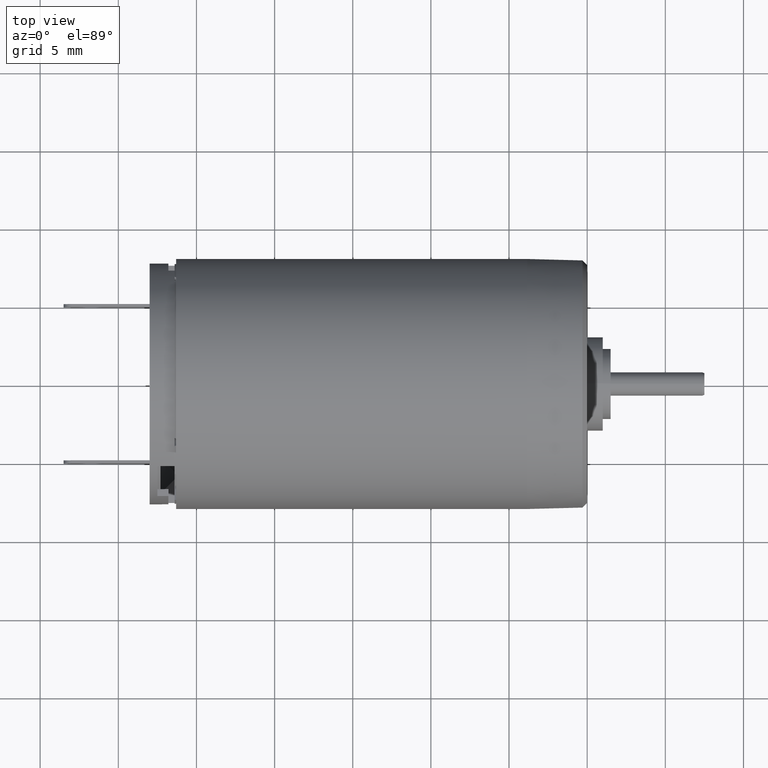
[diagram: clean part render]
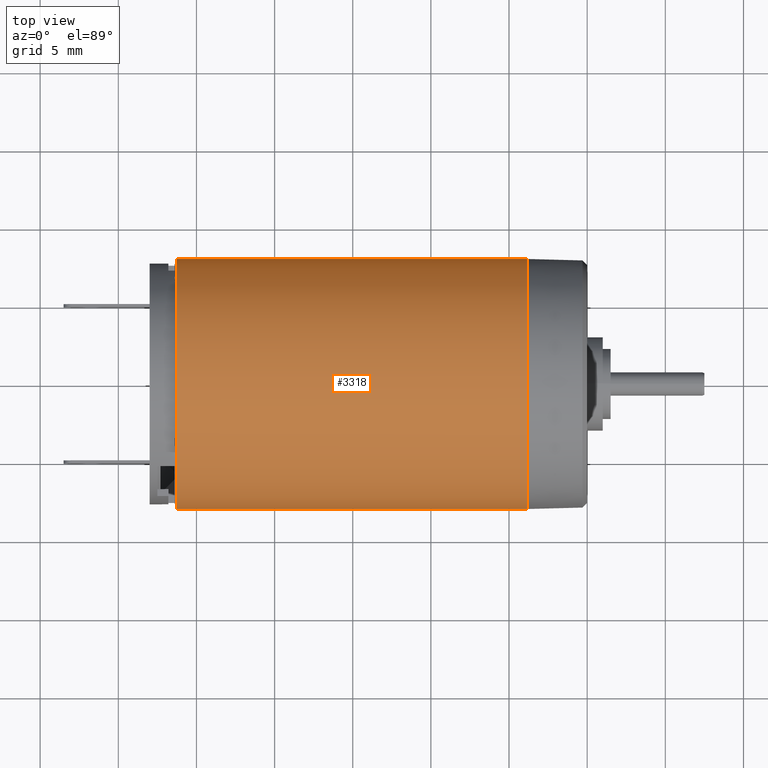
[diagram: same view with one face highlighted and labeled with its STEP entity id]
A machine part, top view. The second image highlights one B-rep face of the part: STEP entity #3318.
In plain terms, the highlighted cylindrical surface (partial cylindrical patch) has radius 8 mm, axis along (-1, 0, 0).
Its self-contained STEP definition (entity closure, byte-faithful):
#359=CARTESIAN_POINT('',(-2.63E1,0.E0,0.E0));
#360=DIRECTION('',(1.E0,0.E0,0.E0));
#361=DIRECTION('',(0.E0,1.E0,0.E0));
#362=AXIS2_PLACEMENT_3D('',#359,#360,#361);
#418=DIRECTION('',(1.E0,0.E0,0.E0));
#419=VECTOR('',#418,2.246E1);
#420=CARTESIAN_POINT('',(-2.63E1,8.E0,0.E0));
#421=LINE('',#420,#419);
#422=DIRECTION('',(-1.E0,0.E0,3.060868771777E-12));
#423=VECTOR('',#422,2.246E1);
#424=CARTESIAN_POINT('',(-3.84E0,-8.E0,-6.874776575907E-11));
#425=LINE('',#424,#423);
#426=CARTESIAN_POINT('',(-3.84E0,0.E0,0.E0));
#427=DIRECTION('',(-1.E0,0.E0,0.E0));
#428=DIRECTION('',(0.E0,-1.E0,0.E0));
#429=AXIS2_PLACEMENT_3D('',#426,#427,#428);
#2182=CARTESIAN_POINT('',(-2.63E1,-8.E0,0.E0));
#2183=CARTESIAN_POINT('',(-2.63E1,8.E0,0.E0));
#2184=VERTEX_POINT('',#2182);
#2185=VERTEX_POINT('',#2183);
#2200=CARTESIAN_POINT('',(-3.84E0,8.E0,0.E0));
#2201=CARTESIAN_POINT('',(-3.84E0,-8.E0,0.E0));
#2202=VERTEX_POINT('',#2200);
#2203=VERTEX_POINT('',#2201);
#3306=CARTESIAN_POINT('',(-3.3908E0,0.E0,0.E0));
#3307=DIRECTION('',(-1.E0,0.E0,0.E0));
#3308=DIRECTION('',(0.E0,1.E0,0.E0));
#3309=AXIS2_PLACEMENT_3D('',#3306,#3307,#3308);
#3310=CYLINDRICAL_SURFACE('',#3309,8.E0);
#3311=ORIENTED_EDGE('',*,*,#3296,.T.);
#3313=ORIENTED_EDGE('',*,*,#3312,.F.);
#3314=ORIENTED_EDGE('',*,*,#3299,.T.);
#3315=ORIENTED_EDGE('',*,*,#3268,.F.);
#3316=EDGE_LOOP('',(#3311,#3313,#3314,#3315));
#3317=FACE_OUTER_BOUND('',#3316,.F.);
#3318=ADVANCED_FACE('',(#3317),#3310,.T.);
#363=CIRCLE('',#362,8.E0);
#430=CIRCLE('',#429,8.E0);
#3268=EDGE_CURVE('',#2185,#2184,#363,.T.);
#3296=EDGE_CURVE('',#2185,#2202,#421,.T.);
#3299=EDGE_CURVE('',#2203,#2184,#425,.T.);
#3312=EDGE_CURVE('',#2203,#2202,#430,.T.);